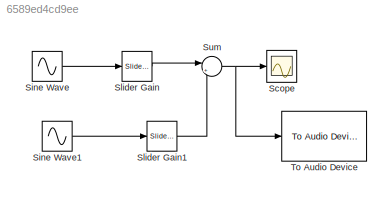
MODEL slx_6589ed4cd9ee
KIND model
BLOCK [Scope] Scope
  Floating = off
  NumInputPorts = 1
  Ports = [1]
  ShowLegends = off
BLOCK [Sin] Sine Wave
  Frequency = 1000
  Ports = [0, 1]
  SampleTime = 1/48000
BLOCK [Sin] Sine Wave1
  Frequency = 2000
  Ports = [0, 1]
  SampleTime = 1/48000
BLOCK [Reference] Slider Gain  REF=simulink/Math
Operations/Slider
Gain
  Ports = [1, 1]
  SourceBlock = simulink/Math\nOperations/Slider\nGain
  SourceType = Slider Gain
  gain = 1
  high = 2
  low = 0
BLOCK [Reference] Slider Gain1  REF=simulink/Math
Operations/Slider
Gain
  Ports = [1, 1]
  SourceBlock = simulink/Math\nOperations/Slider\nGain
  SourceType = Slider Gain
  gain = 0.5
  high = 2
  low = 0
BLOCK [Sum] Sum
  IconShape = round
  InputSameDT = off
  Inputs = |++
  OutDataTypeStr = Inherit: Inherit via internal rule
  Ports = [2, 1]
  SaturateOnIntegerOverflow = off
BLOCK [Reference] To Audio Device  REF=dspsnks4/To Audio
Device
  Ports = [1]
  SourceBlock = dspsnks4/To Audio\nDevice
  SourceType = To Audio Device
  autoBufferSize = on
  bufferSize = 4096
  defaultOutputChannelMapping = on
  deviceDatatype = Determine from input data type
  deviceName = Default
  inheritSampleRate = on
  outputChannelMapping = 1:2
  outputNumUnderrunSamples = off
  queueDuration = 1.0
  sampleRate = 44100
LINE Sine Wave1:1 -> Slider Gain1:1
LINE Sine Wave:1 -> Slider Gain:1
LINE Slider Gain1:1 -> Sum:2
LINE Slider Gain:1 -> Sum:1
NET Sum:1 -> Scope:1, To Audio Device:1
note: NET lines group one-source signal fan-out (src -> all destinations, sorted); 1:1 wires keep LINE
